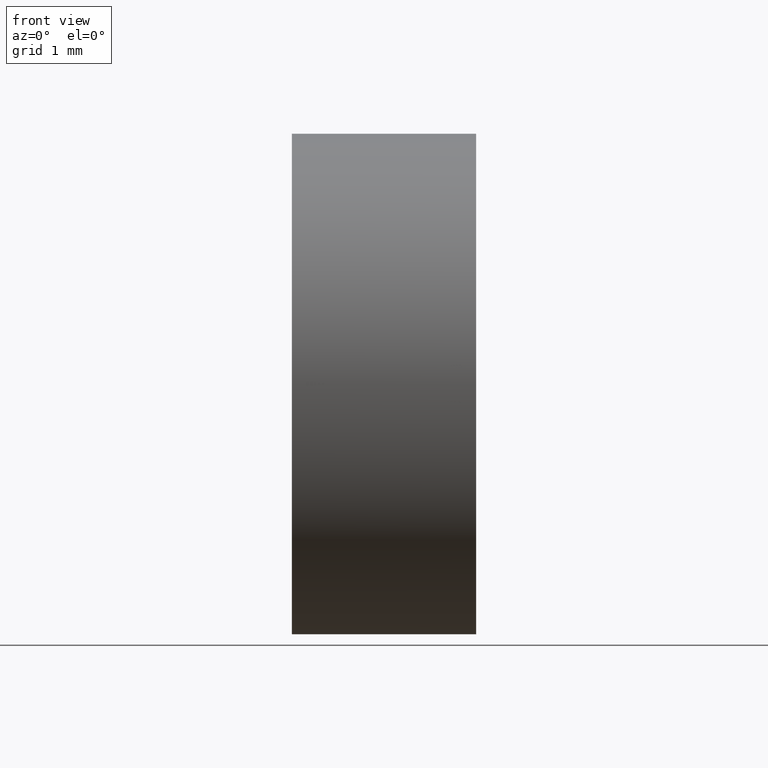
[diagram: clean part render]
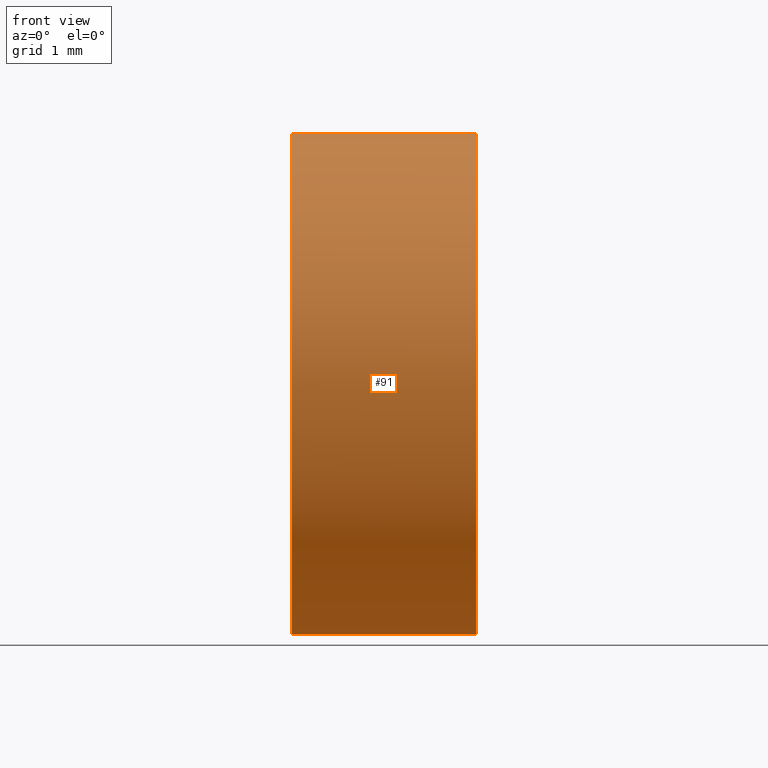
[diagram: same view with one face highlighted and labeled with its STEP entity id]
A machine part, front view. The second image highlights one B-rep face of the part: STEP entity #91.
In plain terms, the highlighted cylindrical surface (partial cylindrical patch) has radius 3.15 mm, axis along (-1, -0, -0).
Its self-contained STEP definition (entity closure, byte-faithful):
#4 = EDGE_CURVE ( 'NONE', #172, #180, #105, .T. ) ;
#10 = DIRECTION ( 'NONE',  ( -1.000000000000000000, -0.0000000000000000000, -0.0000000000000000000 ) ) ;
#11 = DIRECTION ( 'NONE',  ( 0.0000000000000000000, 0.0000000000000000000, 1.000000000000000000 ) ) ;
#16 = AXIS2_PLACEMENT_3D ( 'NONE', #153, #84, #73 ) ;
#19 = CIRCLE ( 'NONE', #72, 3.149999999999998100 ) ;
#22 = CARTESIAN_POINT ( 'NONE',  ( 24.62931315898982000, 13.03112609140304000, 0.0000000000000000000 ) ) ;
#24 = DIRECTION ( 'NONE',  ( 0.0000000000000000000, 0.0000000000000000000, 1.000000000000000000 ) ) ;
#26 = ORIENTED_EDGE ( 'NONE', *, *, #4, .F. ) ;
#30 = VECTOR ( 'NONE', #184, 1000.000000000000000 ) ;
#38 = CARTESIAN_POINT ( 'NONE',  ( 22.30926883257449200, 13.03112609140304000, -3.149999999999998100 ) ) ;
#40 = CARTESIAN_POINT ( 'NONE',  ( 24.62931315898982000, 13.03112609140304000, -3.149999999999998100 ) ) ;
#52 = CARTESIAN_POINT ( 'NONE',  ( 22.30926883257449200, 13.03112609140304000, 3.149999999999998100 ) ) ;
#64 = EDGE_CURVE ( 'NONE', #80, #172, #181, .T. ) ;
#70 = ORIENTED_EDGE ( 'NONE', *, *, #64, .F. ) ;
#72 = AXIS2_PLACEMENT_3D ( 'NONE', #185, #101, #11 ) ;
#73 = DIRECTION ( 'NONE',  ( 0.0000000000000000000, 0.0000000000000000000, 1.000000000000000000 ) ) ;
#74 = DIRECTION ( 'NONE',  ( -1.000000000000000000, -0.0000000000000000000, -0.0000000000000000000 ) ) ;
#80 = VERTEX_POINT ( 'NONE', #40 ) ;
#81 = EDGE_CURVE ( 'NONE', #146, #180, #109, .T. ) ;
#82 = AXIS2_PLACEMENT_3D ( 'NONE', #22, #151, #160 ) ;
#84 = DIRECTION ( 'NONE',  ( -1.000000000000000000, -0.0000000000000000000, -0.0000000000000000000 ) ) ;
#87 = CARTESIAN_POINT ( 'NONE',  ( 20.68403063513288800, 13.03112609140304000, -3.149999999999998100 ) ) ;
#89 = ORIENTED_EDGE ( 'NONE', *, *, #106, .T. ) ;
#91 = ADVANCED_FACE ( 'NONE', ( #140 ), #171, .T. ) ;
#101 = DIRECTION ( 'NONE',  ( -1.000000000000000000, -0.0000000000000000000, -0.0000000000000000000 ) ) ;
#105 = CIRCLE ( 'NONE', #16, 3.149999999999998100 ) ;
#106 = EDGE_CURVE ( 'NONE', #178, #146, #19, .T. ) ;
#109 = LINE ( 'NONE', #131, #30 ) ;
#110 = VECTOR ( 'NONE', #10, 1000.000000000000000 ) ;
#113 = EDGE_CURVE ( 'NONE', #80, #178, #173, .T. ) ;
#114 = CARTESIAN_POINT ( 'NONE',  ( 20.68403063513288800, 13.03112609140304000, 0.0000000000000000000 ) ) ;
#115 = EDGE_LOOP ( 'NONE', ( #70, #174, #89, #169, #26 ) ) ;
#131 = CARTESIAN_POINT ( 'NONE',  ( 20.68403063513288800, 13.03112609140304000, 3.149999999999998100 ) ) ;
#137 = AXIS2_PLACEMENT_3D ( 'NONE', #114, #74, #24 ) ;
#140 = FACE_OUTER_BOUND ( 'NONE', #115, .T. ) ;
#146 = VERTEX_POINT ( 'NONE', #161 ) ;
#151 = DIRECTION ( 'NONE',  ( -1.000000000000000000, -0.0000000000000000000, -0.0000000000000000000 ) ) ;
#153 = CARTESIAN_POINT ( 'NONE',  ( 22.30926883257449200, 13.03112609140304000, 0.0000000000000000000 ) ) ;
#155 = CARTESIAN_POINT ( 'NONE',  ( 24.62931315898982000, 9.881126091403041700, 0.0000000000000000000 ) ) ;
#160 = DIRECTION ( 'NONE',  ( 0.0000000000000000000, 0.0000000000000000000, 1.000000000000000000 ) ) ;
#161 = CARTESIAN_POINT ( 'NONE',  ( 24.62931315898982000, 13.03112609140304000, 3.149999999999998100 ) ) ;
#169 = ORIENTED_EDGE ( 'NONE', *, *, #81, .T. ) ;
#171 = CYLINDRICAL_SURFACE ( 'NONE', #137, 3.149999999999998100 ) ;
#172 = VERTEX_POINT ( 'NONE', #38 ) ;
#173 = CIRCLE ( 'NONE', #82, 3.149999999999998100 ) ;
#174 = ORIENTED_EDGE ( 'NONE', *, *, #113, .T. ) ;
#178 = VERTEX_POINT ( 'NONE', #155 ) ;
#180 = VERTEX_POINT ( 'NONE', #52 ) ;
#181 = LINE ( 'NONE', #87, #110 ) ;
#184 = DIRECTION ( 'NONE',  ( -1.000000000000000000, -0.0000000000000000000, -0.0000000000000000000 ) ) ;
#185 = CARTESIAN_POINT ( 'NONE',  ( 24.62931315898982000, 13.03112609140304000, 0.0000000000000000000 ) ) ;